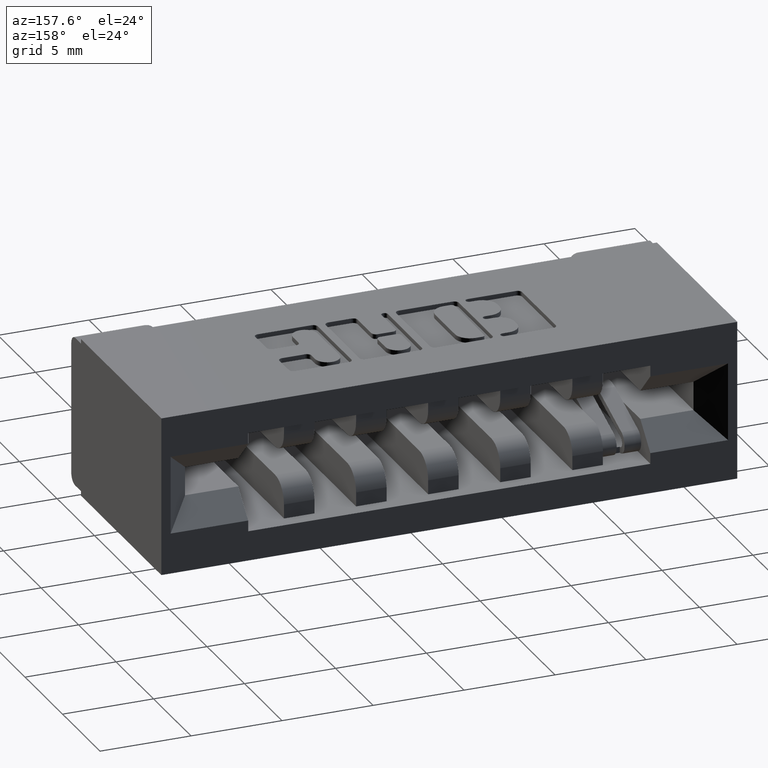
[diagram: clean part render]
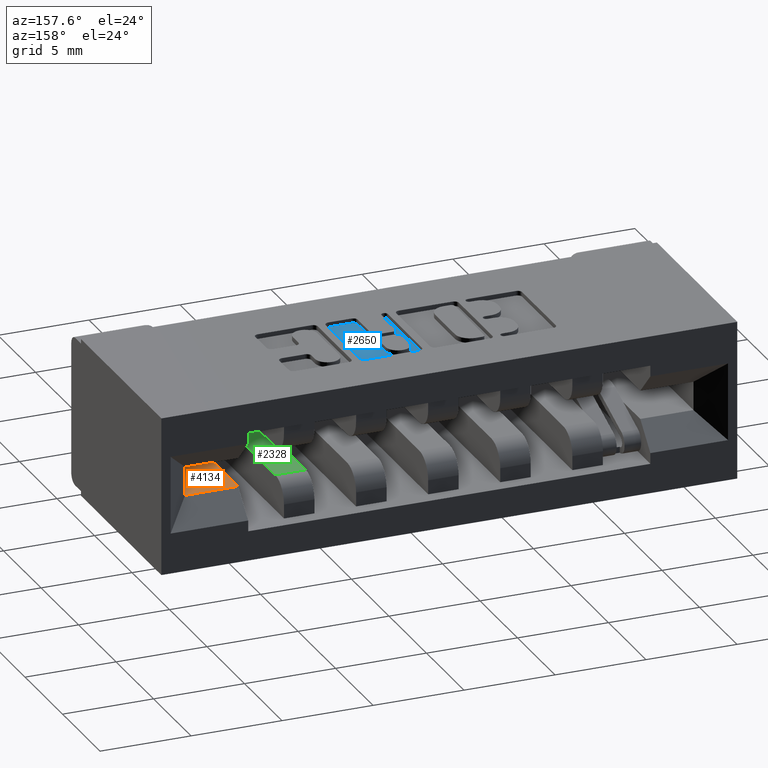
[diagram: same view with three faces highlighted in distinct colors, each labeled with its STEP entity id]
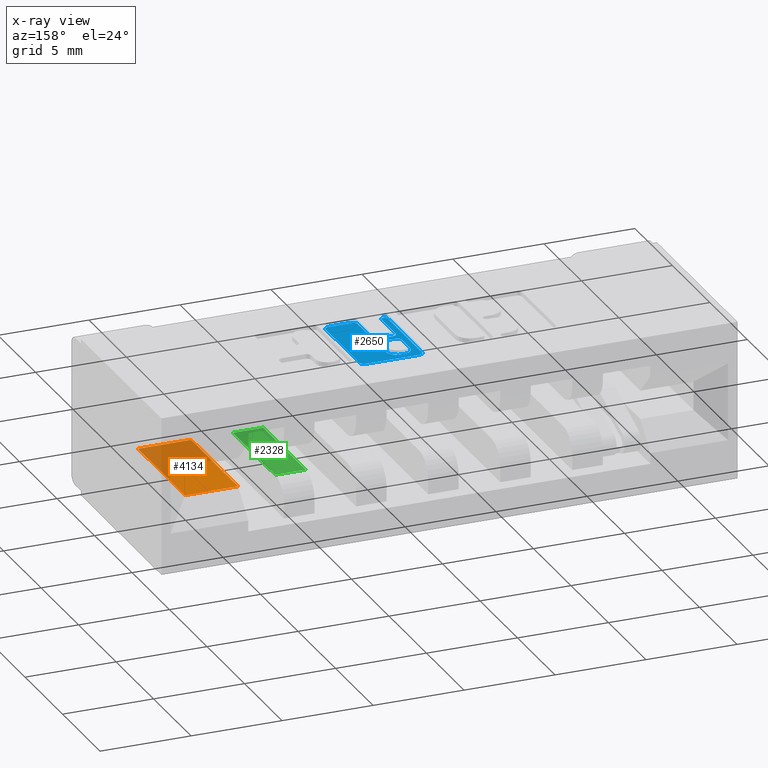
[diagram: x-ray of the same camera — body ghosted, the three highlighted faces saturated]
A machine part, auxiliary view with three faces highlighted in distinct colors.
The next image is the same camera in x-ray (body ghosted, the three faces saturated) — at least one of them is partly hidden behind the body in this view.
Their STEP definitions:

[orange] entity #4134 — the highlighted planar face has unit normal (0, 0, -1).
#373 = VECTOR ( 'NONE', #3767, 39.37007874015748100 ) ;
#402 = LINE ( 'NONE', #2901, #373 ) ;
#571 = CARTESIAN_POINT ( 'NONE',  ( 1.471000000000000800, 0.1730000000000000100, -0.2025000000000001000 ) ) ;
#747 = ORIENTED_EDGE ( 'NONE', *, *, #8951, .F. ) ;
#773 = VECTOR ( 'NONE', #2776, 39.37007874015748100 ) ;
#785 = ORIENTED_EDGE ( 'NONE', *, *, #9021, .T. ) ;
#792 = LINE ( 'NONE', #1975, #773 ) ;
#940 = DIRECTION ( 'NONE',  ( -1.000000000000000000, 0.0000000000000000000, 0.0000000000000000000 ) ) ;
#1081 = VECTOR ( 'NONE', #940, 39.37007874015748100 ) ;
#1090 = LINE ( 'NONE', #6989, #1081 ) ;
#1723 = ORIENTED_EDGE ( 'NONE', *, *, #6665, .T. ) ;
#1884 = FACE_OUTER_BOUND ( 'NONE', #2284, .T. ) ;
#1975 = CARTESIAN_POINT ( 'NONE',  ( 0.3709999999999996600, 0.1730000000000000100, -0.2025000000000001000 ) ) ;
#2284 = EDGE_LOOP ( 'NONE', ( #1723, #4680, #785, #747 ) ) ;
#2377 = CARTESIAN_POINT ( 'NONE',  ( 1.471000000000000800, 0.1730000000000000100, -0.2025000000000001000 ) ) ;
#2776 = DIRECTION ( 'NONE',  ( -1.000000000000000000, -0.0000000000000000000, -0.0000000000000000000 ) ) ;
#2901 = CARTESIAN_POINT ( 'NONE',  ( 1.356000000000000500, 0.1730000000000000100, -0.2025000000000001000 ) ) ;
#3181 = VERTEX_POINT ( 'NONE', #2377 ) ;
#3218 = CARTESIAN_POINT ( 'NONE',  ( 1.356000000000000500, 0.4199999999999997600, -0.2025000000000001000 ) ) ;
#3422 = CARTESIAN_POINT ( 'NONE',  ( 1.471000000000000800, 0.4199999999999997100, -0.2025000000000001000 ) ) ;
#3650 = DIRECTION ( 'NONE',  ( 0.0000000000000000000, 0.0000000000000000000, -1.000000000000000000 ) ) ;
#3767 = DIRECTION ( 'NONE',  ( 0.0000000000000000000, -1.000000000000000000, 0.0000000000000000000 ) ) ;
#3995 = CARTESIAN_POINT ( 'NONE',  ( 1.356000000000000300, 0.1730000000000000100, -0.2025000000000001000 ) ) ;
#4134 = ADVANCED_FACE ( 'NONE', ( #1884 ), #4957, .F. ) ;
#4235 = DIRECTION ( 'NONE',  ( -1.000000000000000000, 0.0000000000000000000, -0.0000000000000000000 ) ) ;
#4460 = EDGE_CURVE ( 'NONE', #5274, #5902, #1090, .T. ) ;
#4572 = VERTEX_POINT ( 'NONE', #3995 ) ;
#4680 = ORIENTED_EDGE ( 'NONE', *, *, #4460, .T. ) ;
#4851 = CARTESIAN_POINT ( 'NONE',  ( 0.3709999999999996600, 0.1730000000000000100, -0.2025000000000001000 ) ) ;
#4957 = PLANE ( 'NONE',  #7129 ) ;
#5274 = VERTEX_POINT ( 'NONE', #3422 ) ;
#5902 = VERTEX_POINT ( 'NONE', #3218 ) ;
#6665 = EDGE_CURVE ( 'NONE', #3181, #5274, #8378, .T. ) ;
#6713 = DIRECTION ( 'NONE',  ( -0.0000000000000000000, 1.000000000000000000, -0.0000000000000000000 ) ) ;
#6989 = CARTESIAN_POINT ( 'NONE',  ( 0.3709999999999996600, 0.4199999999999997600, -0.2025000000000001000 ) ) ;
#7129 = AXIS2_PLACEMENT_3D ( 'NONE', #4851, #3650, #4235 ) ;
#8378 = LINE ( 'NONE', #571, #8389 ) ;
#8389 = VECTOR ( 'NONE', #6713, 39.37007874015748100 ) ;
#8951 = EDGE_CURVE ( 'NONE', #3181, #4572, #792, .T. ) ;
#9021 = EDGE_CURVE ( 'NONE', #5902, #4572, #402, .T. ) ;

[blue] entity #2650 — the highlighted planar face has unit normal (0, 0, 1).
#36 = CIRCLE ( 'NONE', #6837, 0.009815670203803203800 ) ;
#68 = CIRCLE ( 'NONE', #6848, 0.009815670203796920600 ) ;
#166 = VERTEX_POINT ( 'NONE', #1300 ) ;
#276 = VECTOR ( 'NONE', #3282, 39.37007874015748100 ) ;
#310 = VECTOR ( 'NONE', #1695, 39.37007874015748100 ) ;
#343 = VERTEX_POINT ( 'NONE', #8192 ) ;
#351 = LINE ( 'NONE', #6044, #276 ) ;
#357 = DIRECTION ( 'NONE',  ( -1.000000000000000000, -3.115466122418730400E-015, 0.0000000000000000000 ) ) ;
#391 = LINE ( 'NONE', #1563, #310 ) ;
#407 = VERTEX_POINT ( 'NONE', #8100 ) ;
#627 = EDGE_CURVE ( 'NONE', #343, #3903, #5699, .T. ) ;
#636 = CIRCLE ( 'NONE', #6850, 0.009815670203803340800 ) ;
#644 = EDGE_LOOP ( 'NONE', ( #6170, #6201, #6245, #6279, #6523, #6540 ) ) ;
#1037 = VERTEX_POINT ( 'NONE', #5672 ) ;
#1108 = LINE ( 'NONE', #4360, #1340 ) ;
#1262 = CARTESIAN_POINT ( 'NONE',  ( 0.9531463199174504700, 0.2551290308573486200, -0.01000000000000000000 ) ) ;
#1300 = CARTESIAN_POINT ( 'NONE',  ( 0.9433306497136472200, 0.1707142671046479000, -0.01000000000000000000 ) ) ;
#1340 = VECTOR ( 'NONE', #4869, 39.37007874015748100 ) ;
#1563 = CARTESIAN_POINT ( 'NONE',  ( -8.743304377295779200E-015, 0.2551290308573159200, -0.01000000000000000000 ) ) ;
#1569 = CIRCLE ( 'NONE', #6862, 0.009815670203796237100 ) ;
#1678 = VERTEX_POINT ( 'NONE', #8904 ) ;
#1695 = DIRECTION ( 'NONE',  ( -1.000000000000000000, -3.427012734660361200E-014, 0.0000000000000000000 ) ) ;
#1716 = VERTEX_POINT ( 'NONE', #5768 ) ;
#1746 = VECTOR ( 'NONE', #6338, 39.37007874015748100 ) ;
#1780 = LINE ( 'NONE', #8513, #1746 ) ;
#1867 = CARTESIAN_POINT ( 'NONE',  ( 0.9958444853039849500, 0.1736589681657878000, -0.01000000000000000000 ) ) ;
#2034 = ORIENTED_EDGE ( 'NONE', *, *, #5499, .T. ) ;
#2038 = CARTESIAN_POINT ( 'NONE',  ( 1.065044960240807000, 0.3503410318342009600, -0.01000000000000000000 ) ) ;
#2476 = CARTESIAN_POINT ( 'NONE',  ( 0.9531463199174504700, 0.2453133606535455300, -0.01000000000000000000 ) ) ;
#2508 = CARTESIAN_POINT ( 'NONE',  ( 0.9295887114283312200, 0.0000000000000000000, -0.01000000000000000000 ) ) ;
#2567 = FACE_BOUND ( 'NONE', #644, .T. ) ;
#2650 = ADVANCED_FACE ( 'NONE', ( #2567, #2795 ), #8674, .T. ) ;
#2795 = FACE_OUTER_BOUND ( 'NONE', #3402, .T. ) ;
#3011 = VERTEX_POINT ( 'NONE', #1867 ) ;
#3282 = DIRECTION ( 'NONE',  ( 0.0000000000000000000, 1.000000000000000000, -0.0000000000000000000 ) ) ;
#3284 = DIRECTION ( 'NONE',  ( 0.0000000000000000000, 1.000000000000000000, -0.0000000000000000000 ) ) ;
#3309 = DIRECTION ( 'NONE',  ( -0.0000000000000000000, 0.0000000000000000000, 1.000000000000000000 ) ) ;
#3321 = DIRECTION ( 'NONE',  ( 0.0000000000000000000, -1.000000000000000000, 0.0000000000000000000 ) ) ;
#3333 = DIRECTION ( 'NONE',  ( 1.000000000000000000, 0.0000000000000000000, 0.0000000000000000000 ) ) ;
#3362 = DIRECTION ( 'NONE',  ( -0.0000000000000000000, 0.0000000000000000000, 1.000000000000000000 ) ) ;
#3402 = EDGE_LOOP ( 'NONE', ( #6694, #6727, #6797, #6961, #7166, #7267, #7366, #7578, #7619, #7727, #8866, #8992, #4897, #2034 ) ) ;
#3410 = CARTESIAN_POINT ( 'NONE',  ( 0.9695875675088119200, 0.3196670498449320500, -0.01000000000000000000 ) ) ;
#3425 = CARTESIAN_POINT ( 'NONE',  ( 0.9433306497136472200, 0.0000000000000000000, -0.01000000000000000000 ) ) ;
#3476 = VERTEX_POINT ( 'NONE', #9041 ) ;
#3571 = CARTESIAN_POINT ( 'NONE',  ( 0.9531463199174504700, 0.2786866393464886300, -0.01000000000000000000 ) ) ;
#3633 = VERTEX_POINT ( 'NONE', #7639 ) ;
#3675 = CARTESIAN_POINT ( 'NONE',  ( 0.9958444853039849500, 0.2453133606535433700, -0.01000000000000000000 ) ) ;
#3703 = VERTEX_POINT ( 'NONE', #3924 ) ;
#3718 = DIRECTION ( 'NONE',  ( -0.0000000000000000000, 0.0000000000000000000, 1.000000000000000000 ) ) ;
#3824 = VERTEX_POINT ( 'NONE', #8124 ) ;
#3903 = VERTEX_POINT ( 'NONE', #7890 ) ;
#3924 = CARTESIAN_POINT ( 'NONE',  ( 0.9958444853039825100, 0.3196670498449320500, -0.01000000000000000000 ) ) ;
#4216 = VERTEX_POINT ( 'NONE', #7509 ) ;
#4239 = CIRCLE ( 'NONE', #6895, 0.009815670203795690700 ) ;
#4240 = CARTESIAN_POINT ( 'NONE',  ( 1.005660155507788200, 0.1736589681657878000, -0.01000000000000000000 ) ) ;
#4242 = DIRECTION ( 'NONE',  ( 1.000000000000000000, 0.0000000000000000000, 0.0000000000000000000 ) ) ;
#4316 = DIRECTION ( 'NONE',  ( 1.000000000000000000, 0.0000000000000000000, 0.0000000000000000000 ) ) ;
#4337 = DIRECTION ( 'NONE',  ( 1.000000000000000000, 0.0000000000000000000, 0.0000000000000000000 ) ) ;
#4341 = DIRECTION ( 'NONE',  ( -0.0000000000000000000, 0.0000000000000000000, 1.000000000000000000 ) ) ;
#4360 = CARTESIAN_POINT ( 'NONE',  ( 0.0000000000000000000, 0.1638432979619845200, -0.01000000000000000000 ) ) ;
#4459 = DIRECTION ( 'NONE',  ( 1.000000000000000000, 0.0000000000000000000, 0.0000000000000000000 ) ) ;
#4519 = VERTEX_POINT ( 'NONE', #1262 ) ;
#4643 = AXIS2_PLACEMENT_3D ( 'NONE', #8628, #6791, #6778 ) ;
#4659 = CARTESIAN_POINT ( 'NONE',  ( 0.9958444853039825100, 0.0000000000000000000, -0.01000000000000000000 ) ) ;
#4714 = CARTESIAN_POINT ( 'NONE',  ( 0.9958444853039825100, 0.2786866393464819100, -0.01000000000000000000 ) ) ;
#4869 = DIRECTION ( 'NONE',  ( -1.000000000000000000, 0.0000000000000000000, 0.0000000000000000000 ) ) ;
#4897 = ORIENTED_EDGE ( 'NONE', *, *, #5786, .F. ) ;
#5082 = CARTESIAN_POINT ( 'NONE',  ( 0.9433306497136472200, 0.3196670624473478800, -0.01000000000000000000 ) ) ;
#5156 = CIRCLE ( 'NONE', #6648, 0.009815670203796511200 ) ;
#5162 = VECTOR ( 'NONE', #7233, 39.37007874015748100 ) ;
#5223 = LINE ( 'NONE', #4659, #5162 ) ;
#5368 = VERTEX_POINT ( 'NONE', #5082 ) ;
#5499 = EDGE_CURVE ( 'NONE', #5527, #3903, #4239, .T. ) ;
#5527 = VERTEX_POINT ( 'NONE', #2038 ) ;
#5664 = VECTOR ( 'NONE', #7862, 39.37007874015748100 ) ;
#5672 = CARTESIAN_POINT ( 'NONE',  ( 1.065044960240807000, 0.1736589681657807500, -0.01000000000000000000 ) ) ;
#5699 = LINE ( 'NONE', #8027, #5664 ) ;
#5768 = CARTESIAN_POINT ( 'NONE',  ( 0.9295887114283312200, 0.3503410318342100000, -0.01000000000000000000 ) ) ;
#5786 = EDGE_CURVE ( 'NONE', #5527, #1037, #1780, .T. ) ;
#5810 = EDGE_CURVE ( 'NONE', #4216, #1037, #1569, .T. ) ;
#5816 = CARTESIAN_POINT ( 'NONE',  ( 0.9531463199174504700, 0.2688709691426853200, -0.01000000000000000000 ) ) ;
#5999 = EDGE_CURVE ( 'NONE', #4216, #3476, #1108, .T. ) ;
#6010 = CARTESIAN_POINT ( 'NONE',  ( 0.9860288151001880300, 0.2453133606535527200, -0.01000000000000000000 ) ) ;
#6044 = CARTESIAN_POINT ( 'NONE',  ( 0.9958444853039849500, 0.0000000000000000000, -0.01000000000000000000 ) ) ;
#6062 = EDGE_CURVE ( 'NONE', #3011, #3476, #636, .T. ) ;
#6099 = EDGE_CURVE ( 'NONE', #3011, #6538, #351, .T. ) ;
#6114 = EDGE_CURVE ( 'NONE', #6538, #6724, #68, .T. ) ;
#6141 = EDGE_CURVE ( 'NONE', #6724, #4519, #391, .T. ) ;
#6170 = ORIENTED_EDGE ( 'NONE', *, *, #7503, .F. ) ;
#6183 = EDGE_CURVE ( 'NONE', #4519, #1678, #36, .T. ) ;
#6201 = ORIENTED_EDGE ( 'NONE', *, *, #8290, .T. ) ;
#6207 = EDGE_CURVE ( 'NONE', #1678, #166, #8816, .T. ) ;
#6245 = ORIENTED_EDGE ( 'NONE', *, *, #7842, .F. ) ;
#6279 = ORIENTED_EDGE ( 'NONE', *, *, #7608, .T. ) ;
#6311 = EDGE_CURVE ( 'NONE', #3824, #166, #8726, .T. ) ;
#6322 = VERTEX_POINT ( 'NONE', #4714 ) ;
#6338 = DIRECTION ( 'NONE',  ( 0.0000000000000000000, -1.000000000000000000, 0.0000000000000000000 ) ) ;
#6365 = CARTESIAN_POINT ( 'NONE',  ( 0.9860288151001884700, 0.2551290308573497300, -0.01000000000000000000 ) ) ;
#6523 = ORIENTED_EDGE ( 'NONE', *, *, #7582, .F. ) ;
#6538 = VERTEX_POINT ( 'NONE', #3675 ) ;
#6540 = ORIENTED_EDGE ( 'NONE', *, *, #7535, .T. ) ;
#6598 = DIRECTION ( 'NONE',  ( -0.0000000000000000000, 0.0000000000000000000, 1.000000000000000000 ) ) ;
#6605 = DIRECTION ( 'NONE',  ( 1.000000000000000000, 0.0000000000000000000, 0.0000000000000000000 ) ) ;
#6648 = AXIS2_PLACEMENT_3D ( 'NONE', #7260, #3309, #7905 ) ;
#6669 = DIRECTION ( 'NONE',  ( 0.0000000000000000000, 1.000000000000000000, -0.0000000000000000000 ) ) ;
#6694 = ORIENTED_EDGE ( 'NONE', *, *, #627, .F. ) ;
#6719 = AXIS2_PLACEMENT_3D ( 'NONE', #7560, #3718, #8230 ) ;
#6724 = VERTEX_POINT ( 'NONE', #6365 ) ;
#6727 = ORIENTED_EDGE ( 'NONE', *, *, #8319, .T. ) ;
#6738 = DIRECTION ( 'NONE',  ( 1.000000000000000000, 0.0000000000000000000, 0.0000000000000000000 ) ) ;
#6740 = AXIS2_PLACEMENT_3D ( 'NONE', #3571, #8121, #4337 ) ;
#6747 = DIRECTION ( 'NONE',  ( -0.0000000000000000000, 0.0000000000000000000, 1.000000000000000000 ) ) ;
#6767 = AXIS2_PLACEMENT_3D ( 'NONE', #3410, #7978, #4242 ) ;
#6778 = DIRECTION ( 'NONE',  ( 1.000000000000000000, 0.0000000000000000000, 0.0000000000000000000 ) ) ;
#6791 = DIRECTION ( 'NONE',  ( -0.0000000000000000000, 0.0000000000000000000, 1.000000000000000000 ) ) ;
#6794 = CARTESIAN_POINT ( 'NONE',  ( 1.055229290037010800, 0.1736589681657807500, -0.01000000000000000000 ) ) ;
#6797 = ORIENTED_EDGE ( 'NONE', *, *, #7261, .F. ) ;
#6802 = CIRCLE ( 'NONE', #6719, 0.009815670203796374200 ) ;
#6833 = AXIS2_PLACEMENT_3D ( 'NONE', #7222, #7414, #7362 ) ;
#6837 = AXIS2_PLACEMENT_3D ( 'NONE', #2476, #3362, #3333 ) ;
#6848 = AXIS2_PLACEMENT_3D ( 'NONE', #6010, #6598, #6605 ) ;
#6850 = AXIS2_PLACEMENT_3D ( 'NONE', #4240, #4341, #4316 ) ;
#6862 = AXIS2_PLACEMENT_3D ( 'NONE', #6794, #6747, #6738 ) ;
#6895 = AXIS2_PLACEMENT_3D ( 'NONE', #9051, #9023, #4459 ) ;
#6945 = VECTOR ( 'NONE', #357, 39.37007874015748100 ) ;
#6961 = ORIENTED_EDGE ( 'NONE', *, *, #6311, .T. ) ;
#6975 = LINE ( 'NONE', #8792, #6945 ) ;
#7027 = VERTEX_POINT ( 'NONE', #5816 ) ;
#7166 = ORIENTED_EDGE ( 'NONE', *, *, #6207, .F. ) ;
#7203 = CIRCLE ( 'NONE', #6740, 0.009815670203803340800 ) ;
#7222 = CARTESIAN_POINT ( 'NONE',  ( 0.9364596805709872700, 0.1707142671046479000, -0.01000000000000000000 ) ) ;
#7233 = DIRECTION ( 'NONE',  ( 0.0000000000000000000, -1.000000000000000000, 0.0000000000000000000 ) ) ;
#7255 = VECTOR ( 'NONE', #6669, 39.37007874015748100 ) ;
#7260 = CARTESIAN_POINT ( 'NONE',  ( 0.9394043816321276900, 0.3503410318342100000, -0.01000000000000000000 ) ) ;
#7261 = EDGE_CURVE ( 'NONE', #3824, #1716, #7536, .T. ) ;
#7267 = ORIENTED_EDGE ( 'NONE', *, *, #6183, .F. ) ;
#7296 = LINE ( 'NONE', #7355, #7255 ) ;
#7355 = CARTESIAN_POINT ( 'NONE',  ( 0.9433306497136472200, 0.0000000000000000000, -0.01000000000000000000 ) ) ;
#7362 = DIRECTION ( 'NONE',  ( 1.000000000000000000, 0.0000000000000000000, 0.0000000000000000000 ) ) ;
#7366 = ORIENTED_EDGE ( 'NONE', *, *, #6141, .F. ) ;
#7390 = CIRCLE ( 'NONE', #6767, 0.02625691779516779700 ) ;
#7414 = DIRECTION ( 'NONE',  ( -0.0000000000000000000, 0.0000000000000000000, 1.000000000000000000 ) ) ;
#7501 = VECTOR ( 'NONE', #3284, 39.37007874015748100 ) ;
#7503 = EDGE_CURVE ( 'NONE', #3703, #5368, #7390, .T. ) ;
#7509 = CARTESIAN_POINT ( 'NONE',  ( 1.055229290037010800, 0.1638432979619845200, -0.01000000000000000000 ) ) ;
#7535 = EDGE_CURVE ( 'NONE', #407, #5368, #7296, .T. ) ;
#7536 = LINE ( 'NONE', #2508, #7501 ) ;
#7560 = CARTESIAN_POINT ( 'NONE',  ( 0.9860288151001861400, 0.2786866393464819100, -0.01000000000000000000 ) ) ;
#7578 = ORIENTED_EDGE ( 'NONE', *, *, #6114, .F. ) ;
#7582 = EDGE_CURVE ( 'NONE', #407, #7027, #7203, .T. ) ;
#7608 = EDGE_CURVE ( 'NONE', #3633, #7027, #6975, .T. ) ;
#7619 = ORIENTED_EDGE ( 'NONE', *, *, #6099, .F. ) ;
#7639 = CARTESIAN_POINT ( 'NONE',  ( 0.9860288151001861400, 0.2688709691426854300, -0.01000000000000000000 ) ) ;
#7727 = ORIENTED_EDGE ( 'NONE', *, *, #6062, .T. ) ;
#7842 = EDGE_CURVE ( 'NONE', #3633, #6322, #6802, .T. ) ;
#7862 = DIRECTION ( 'NONE',  ( 1.000000000000000000, 0.0000000000000000000, 0.0000000000000000000 ) ) ;
#7890 = CARTESIAN_POINT ( 'NONE',  ( 1.055229290037014200, 0.3601567020380065400, -0.01000000000000000000 ) ) ;
#7905 = DIRECTION ( 'NONE',  ( 1.000000000000000000, 0.0000000000000000000, 0.0000000000000000000 ) ) ;
#7978 = DIRECTION ( 'NONE',  ( -0.0000000000000000000, 0.0000000000000000000, 1.000000000000000000 ) ) ;
#8027 = CARTESIAN_POINT ( 'NONE',  ( 0.0000000000000000000, 0.3601567020380065400, -0.01000000000000000000 ) ) ;
#8100 = CARTESIAN_POINT ( 'NONE',  ( 0.9433306497136472200, 0.2786866393464886300, -0.01000000000000000000 ) ) ;
#8121 = DIRECTION ( 'NONE',  ( -0.0000000000000000000, 0.0000000000000000000, 1.000000000000000000 ) ) ;
#8124 = CARTESIAN_POINT ( 'NONE',  ( 0.9295887114283312200, 0.1707142671046479000, -0.01000000000000000000 ) ) ;
#8192 = CARTESIAN_POINT ( 'NONE',  ( 0.9394043816321276900, 0.3601567020380065400, -0.01000000000000000000 ) ) ;
#8230 = DIRECTION ( 'NONE',  ( 1.000000000000000000, 0.0000000000000000000, 0.0000000000000000000 ) ) ;
#8290 = EDGE_CURVE ( 'NONE', #3703, #6322, #5223, .T. ) ;
#8319 = EDGE_CURVE ( 'NONE', #343, #1716, #5156, .T. ) ;
#8513 = CARTESIAN_POINT ( 'NONE',  ( 1.065044960240807000, 0.0000000000000000000, -0.01000000000000000000 ) ) ;
#8628 = CARTESIAN_POINT ( 'NONE',  ( 0.0000000000000000000, 0.0000000000000000000, -0.01000000000000000000 ) ) ;
#8674 = PLANE ( 'NONE',  #4643 ) ;
#8726 = CIRCLE ( 'NONE', #6833, 0.006870969142657995000 ) ;
#8792 = CARTESIAN_POINT ( 'NONE',  ( -8.376583956659186900E-016, 0.2688709691426823800, -0.01000000000000000000 ) ) ;
#8808 = VECTOR ( 'NONE', #3321, 39.37007874015748100 ) ;
#8816 = LINE ( 'NONE', #3425, #8808 ) ;
#8866 = ORIENTED_EDGE ( 'NONE', *, *, #5999, .F. ) ;
#8904 = CARTESIAN_POINT ( 'NONE',  ( 0.9433306497136472200, 0.2453133606535455300, -0.01000000000000000000 ) ) ;
#8992 = ORIENTED_EDGE ( 'NONE', *, *, #5810, .T. ) ;
#9023 = DIRECTION ( 'NONE',  ( -0.0000000000000000000, 0.0000000000000000000, 1.000000000000000000 ) ) ;
#9041 = CARTESIAN_POINT ( 'NONE',  ( 1.005660155507786000, 0.1638432979619845200, -0.01000000000000000000 ) ) ;
#9051 = CARTESIAN_POINT ( 'NONE',  ( 1.055229290037011900, 0.3503410318342102800, -0.01000000000000000000 ) ) ;

[green] entity #2328 — the highlighted planar face has unit normal (0, 0, -1).
#594 = CARTESIAN_POINT ( 'NONE',  ( 1.266000000000000500, 0.1730000000000000100, -0.2025000000000001000 ) ) ;
#1275 = VECTOR ( 'NONE', #2931, 39.37007874015748100 ) ;
#1367 = VERTEX_POINT ( 'NONE', #2459 ) ;
#1498 = EDGE_CURVE ( 'NONE', #1367, #1834, #9036, .T. ) ;
#1693 = ORIENTED_EDGE ( 'NONE', *, *, #8171, .F. ) ;
#1773 = ORIENTED_EDGE ( 'NONE', *, *, #8091, .T. ) ;
#1792 = ORIENTED_EDGE ( 'NONE', *, *, #1498, .T. ) ;
#1802 = ORIENTED_EDGE ( 'NONE', *, *, #8250, .T. ) ;
#1834 = VERTEX_POINT ( 'NONE', #2827 ) ;
#2328 = ADVANCED_FACE ( 'NONE', ( #2511 ), #2675, .F. ) ;
#2459 = CARTESIAN_POINT ( 'NONE',  ( 1.200000000000000400, 0.3960000000000000200, -0.2025000000000000700 ) ) ;
#2511 = FACE_OUTER_BOUND ( 'NONE', #4426, .T. ) ;
#2520 = DIRECTION ( 'NONE',  ( 0.0000000000000000000, 0.0000000000000000000, -1.000000000000000000 ) ) ;
#2552 = DIRECTION ( 'NONE',  ( -1.000000000000000000, 0.0000000000000000000, -0.0000000000000000000 ) ) ;
#2675 = PLANE ( 'NONE',  #4894 ) ;
#2827 = CARTESIAN_POINT ( 'NONE',  ( 1.200000000000000400, 0.1730000000000000100, -0.2025000000000001000 ) ) ;
#2892 = VERTEX_POINT ( 'NONE', #594 ) ;
#2930 = CARTESIAN_POINT ( 'NONE',  ( 1.200000000000000400, 0.1730000000000000100, -0.2025000000000001000 ) ) ;
#2931 = DIRECTION ( 'NONE',  ( 0.0000000000000000000, -1.000000000000000000, 0.0000000000000000000 ) ) ;
#3197 = CARTESIAN_POINT ( 'NONE',  ( 1.266000000000000500, 0.1730000000000000100, -0.2025000000000001000 ) ) ;
#4041 = CARTESIAN_POINT ( 'NONE',  ( 1.266000000000000500, 0.3959999999999999600, -0.2025000000000001000 ) ) ;
#4062 = CARTESIAN_POINT ( 'NONE',  ( 0.3709999999999996600, 0.1730000000000000100, -0.2025000000000001000 ) ) ;
#4067 = DIRECTION ( 'NONE',  ( 0.0000000000000000000, 1.000000000000000000, 0.0000000000000000000 ) ) ;
#4426 = EDGE_LOOP ( 'NONE', ( #1802, #1773, #1792, #1693 ) ) ;
#4582 = CARTESIAN_POINT ( 'NONE',  ( 0.3709999999999996600, 0.1730000000000000100, -0.2025000000000001000 ) ) ;
#4894 = AXIS2_PLACEMENT_3D ( 'NONE', #4062, #2520, #2552 ) ;
#5146 = DIRECTION ( 'NONE',  ( -1.000000000000000000, -0.0000000000000000000, -0.0000000000000000000 ) ) ;
#5414 = VECTOR ( 'NONE', #4067, 39.37007874015748100 ) ;
#5521 = VERTEX_POINT ( 'NONE', #4041 ) ;
#5554 = LINE ( 'NONE', #3197, #5414 ) ;
#5782 = VECTOR ( 'NONE', #5146, 39.37007874015748100 ) ;
#5851 = LINE ( 'NONE', #4582, #5782 ) ;
#6134 = VECTOR ( 'NONE', #9008, 39.37007874015748100 ) ;
#6273 = LINE ( 'NONE', #7039, #6134 ) ;
#7039 = CARTESIAN_POINT ( 'NONE',  ( 1.421053823869162800, 0.3960000000000000200, -0.2025000000000000700 ) ) ;
#8091 = EDGE_CURVE ( 'NONE', #5521, #1367, #6273, .T. ) ;
#8171 = EDGE_CURVE ( 'NONE', #2892, #1834, #5851, .T. ) ;
#8250 = EDGE_CURVE ( 'NONE', #2892, #5521, #5554, .T. ) ;
#9008 = DIRECTION ( 'NONE',  ( -1.000000000000000000, 0.0000000000000000000, 0.0000000000000000000 ) ) ;
#9036 = LINE ( 'NONE', #2930, #1275 ) ;